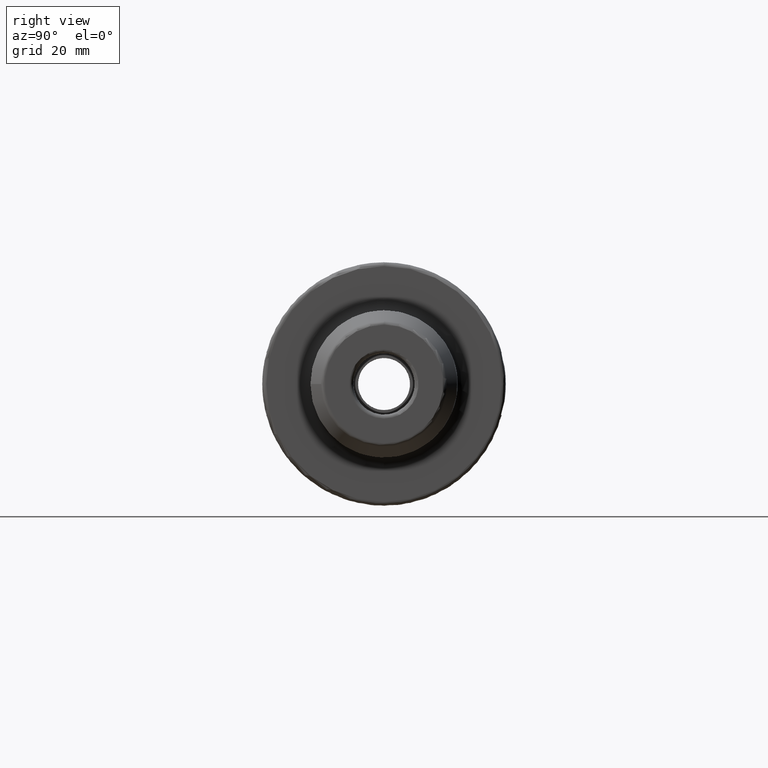
[diagram: clean part render]
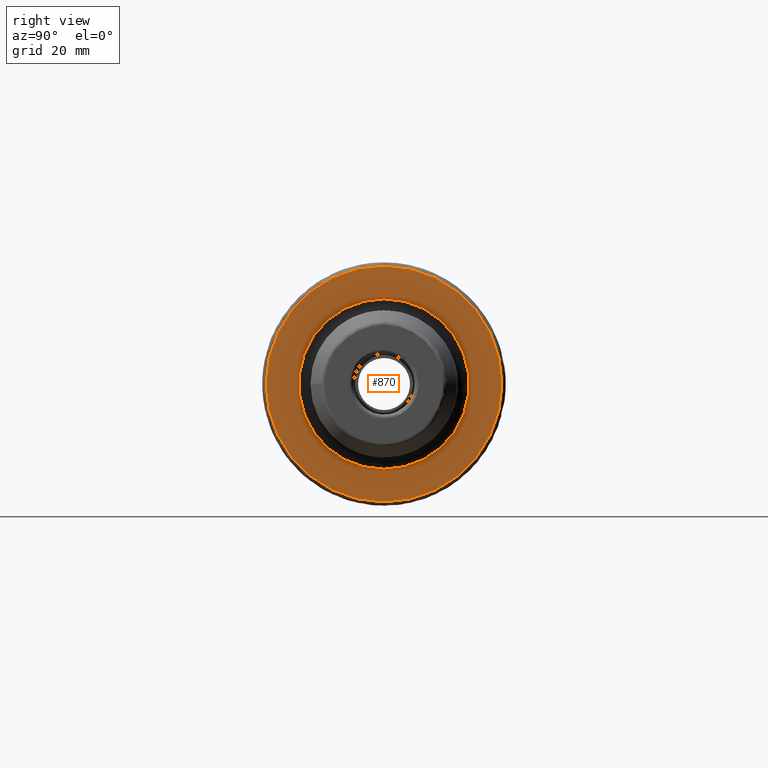
[diagram: same view with one face highlighted and labeled with its STEP entity id]
A machine part, right view. The second image highlights one B-rep face of the part: STEP entity #870.
In plain terms, the highlighted planar face has unit normal (1, 0, 0).
Its self-contained STEP definition (entity closure, byte-faithful):
#159=FACE_BOUND('',#247,.T.);
#166=PLANE('',#964);
#190=FACE_OUTER_BOUND('',#246,.T.);
#246=EDGE_LOOP('',(#628));
#247=EDGE_LOOP('',(#629));
#314=CIRCLE('',#963,22.05);
#315=CIRCLE('',#965,30.5);
#379=VERTEX_POINT('',#1458);
#380=VERTEX_POINT('',#1462);
#474=EDGE_CURVE('',#379,#379,#314,.T.);
#475=EDGE_CURVE('',#380,#380,#315,.T.);
#628=ORIENTED_EDGE('',*,*,#475,.T.);
#629=ORIENTED_EDGE('',*,*,#474,.F.);
#870=ADVANCED_FACE('',(#190,#159),#166,.T.);
#963=AXIS2_PLACEMENT_3D('',#1460,#1111,#1112);
#964=AXIS2_PLACEMENT_3D('',#1461,#1113,#1114);
#965=AXIS2_PLACEMENT_3D('',#1463,#1115,#1116);
#1111=DIRECTION('center_axis',(1.,0.,0.));
#1112=DIRECTION('ref_axis',(0.,-1.,-1.22464679914735E-16));
#1113=DIRECTION('center_axis',(1.,0.,0.));
#1114=DIRECTION('ref_axis',(0.,0.,-1.));
#1115=DIRECTION('center_axis',(1.,0.,0.));
#1116=DIRECTION('ref_axis',(0.,0.,-1.));
#1458=CARTESIAN_POINT('',(27.,-2.70034619211992E-15,-22.05));
#1460=CARTESIAN_POINT('Origin',(27.,0.,0.));
#1461=CARTESIAN_POINT('Origin',(27.,0.,0.));
#1462=CARTESIAN_POINT('',(27.,-3.73517273739943E-15,30.5));
#1463=CARTESIAN_POINT('Origin',(27.,0.,0.));